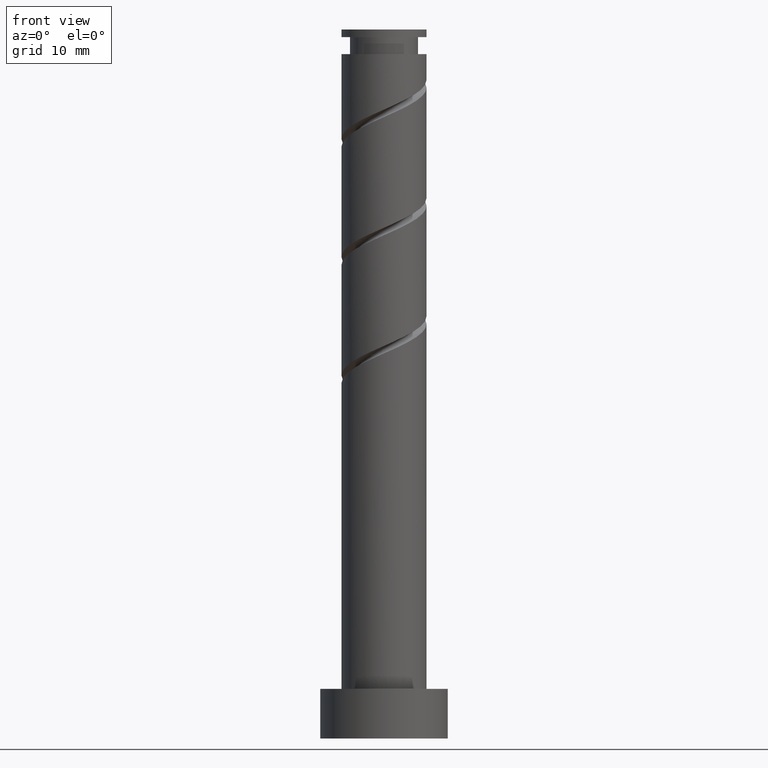
[diagram: clean part render]
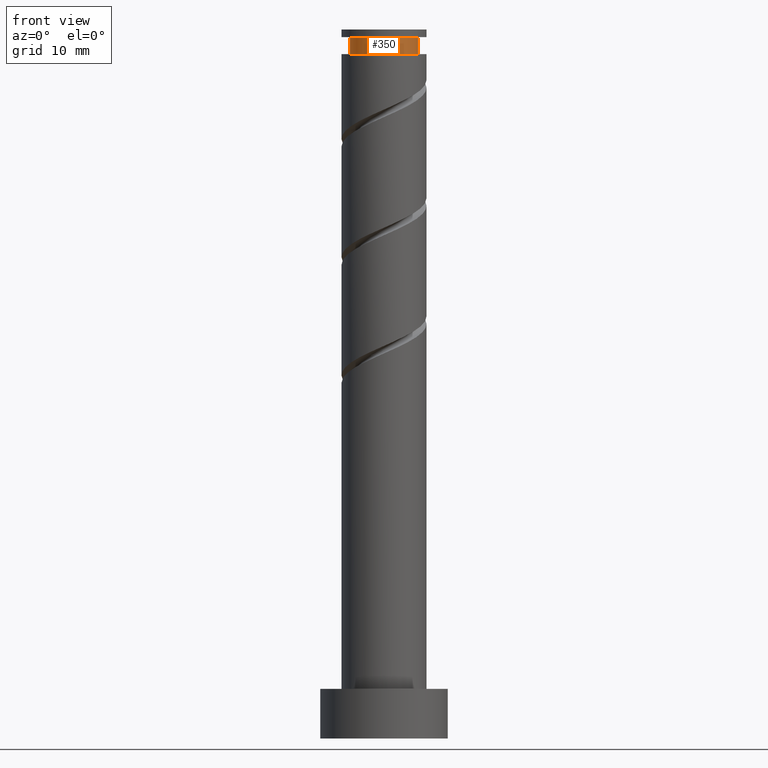
[diagram: same view with one face highlighted and labeled with its STEP entity id]
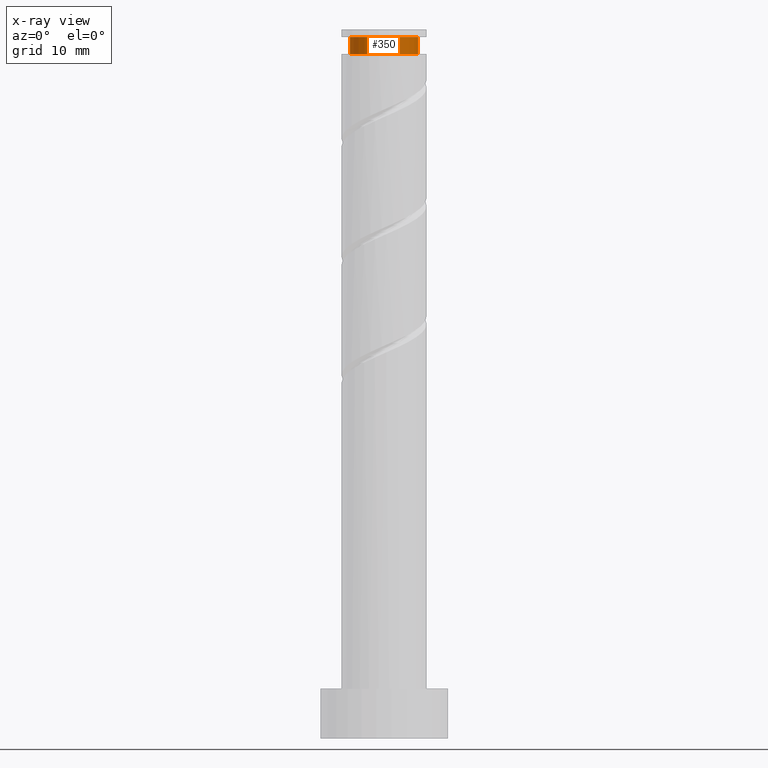
[diagram: x-ray of the same camera — body ghosted, the highlighted face saturated]
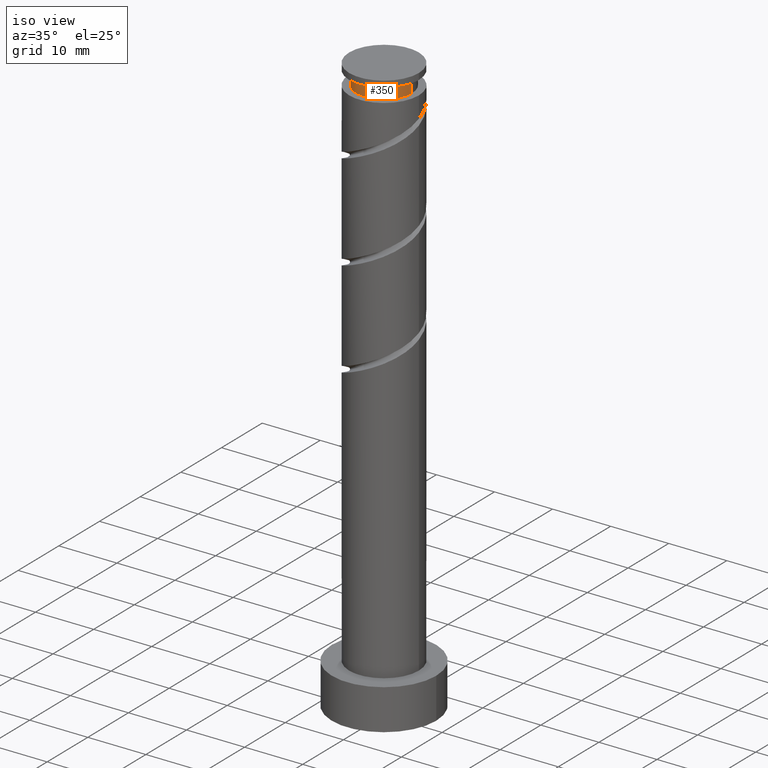
[diagram: same view with one face highlighted and labeled with its STEP entity id]
A machine part, front view. The second image highlights one B-rep face of the part: STEP entity #350.
The next image is the same camera in x-ray: the body ghosted, the highlighted face saturated — about 0% of this face is hidden behind the body in this view.
A second angle (iso view) of the same face is appended — the face is thin or edge-on in the first view.
In plain terms, the highlighted cylindrical surface (edge-blend (fillet) strip) has radius 4.8 mm, axis along (-0, -0, -1).
Its self-contained STEP definition (entity closure, byte-faithful):
#10 = EDGE_CURVE ( 'NONE', #1219, #294, #1331, .T. ) ;
#52 = FACE_OUTER_BOUND ( 'NONE', #744, .T. ) ;
#54 = ORIENTED_EDGE ( 'NONE', *, *, #456, .T. ) ;
#105 = AXIS2_PLACEMENT_3D ( 'NONE', #187, #378, #270 ) ;
#187 = CARTESIAN_POINT ( 'NONE',  ( 0.000000000000000000, 0.000000000000000000, 96.52150263112108064 ) ) ;
#197 = DIRECTION ( 'NONE',  ( -1.000000000000000000, 0.000000000000000000, 0.000000000000000000 ) ) ;
#237 = AXIS2_PLACEMENT_3D ( 'NONE', #406, #984, #197 ) ;
#241 = EDGE_CURVE ( 'NONE', #1159, #1198, #705, .T. ) ;
#259 = VECTOR ( 'NONE', #1346, 1000.000000000000000 ) ;
#270 = DIRECTION ( 'NONE',  ( -1.000000000000000000, 0.000000000000000000, 0.000000000000000000 ) ) ;
#294 = VERTEX_POINT ( 'NONE', #1313 ) ;
#350 = ADVANCED_FACE ( 'NONE', ( #52 ), #938, .T. ) ;
#378 = DIRECTION ( 'NONE',  ( -0.000000000000000000, -0.000000000000000000, -1.000000000000000000 ) ) ;
#398 = DIRECTION ( 'NONE',  ( -1.000000000000000000, 0.000000000000000000, 0.000000000000000000 ) ) ;
#406 = CARTESIAN_POINT ( 'NONE',  ( 0.000000000000000000, 0.000000000000000000, 98.92150263112108632 ) ) ;
#426 = VECTOR ( 'NONE', #1289, 1000.000000000000000 ) ;
#456 = EDGE_CURVE ( 'NONE', #1159, #1219, #903, .T. ) ;
#495 = CARTESIAN_POINT ( 'NONE',  ( 0.000000000000000000, 0.000000000000000000, 0.000000000000000000 ) ) ;
#512 = AXIS2_PLACEMENT_3D ( 'NONE', #495, #958, #398 ) ;
#514 = ORIENTED_EDGE ( 'NONE', *, *, #10, .T. ) ;
#516 = CIRCLE ( 'NONE', #105, 4.800000000000003375 ) ;
#522 = CARTESIAN_POINT ( 'NONE',  ( -4.800000000000003375, 0.000000000000000000, 0.000000000000000000 ) ) ;
#694 = CARTESIAN_POINT ( 'NONE',  ( 4.800000000000003375, 5.878304635907299142E-16, 96.52150263112108064 ) ) ;
#705 = LINE ( 'NONE', #1194, #426 ) ;
#744 = EDGE_LOOP ( 'NONE', ( #1074, #54, #514, #1078 ) ) ;
#903 = CIRCLE ( 'NONE', #237, 4.800000000000003375 ) ;
#938 = CYLINDRICAL_SURFACE ( 'NONE', #512, 4.800000000000003375 ) ;
#958 = DIRECTION ( 'NONE',  ( -0.000000000000000000, -0.000000000000000000, -1.000000000000000000 ) ) ;
#984 = DIRECTION ( 'NONE',  ( -0.000000000000000000, -0.000000000000000000, -1.000000000000000000 ) ) ;
#1029 = CARTESIAN_POINT ( 'NONE',  ( -4.800000000000003375, 0.000000000000000000, 98.92150263112108632 ) ) ;
#1047 = CARTESIAN_POINT ( 'NONE',  ( 4.800000000000003375, 5.878304635907299142E-16, 98.92150263112108632 ) ) ;
#1074 = ORIENTED_EDGE ( 'NONE', *, *, #241, .F. ) ;
#1078 = ORIENTED_EDGE ( 'NONE', *, *, #1268, .F. ) ;
#1159 = VERTEX_POINT ( 'NONE', #1047 ) ;
#1194 = CARTESIAN_POINT ( 'NONE',  ( 4.800000000000003375, 5.878304635907299142E-16, 0.000000000000000000 ) ) ;
#1198 = VERTEX_POINT ( 'NONE', #694 ) ;
#1219 = VERTEX_POINT ( 'NONE', #1029 ) ;
#1268 = EDGE_CURVE ( 'NONE', #1198, #294, #516, .T. ) ;
#1289 = DIRECTION ( 'NONE',  ( -0.000000000000000000, -0.000000000000000000, -1.000000000000000000 ) ) ;
#1313 = CARTESIAN_POINT ( 'NONE',  ( -4.800000000000003375, 0.000000000000000000, 96.52150263112108064 ) ) ;
#1331 = LINE ( 'NONE', #522, #259 ) ;
#1346 = DIRECTION ( 'NONE',  ( -0.000000000000000000, -0.000000000000000000, -1.000000000000000000 ) ) ;